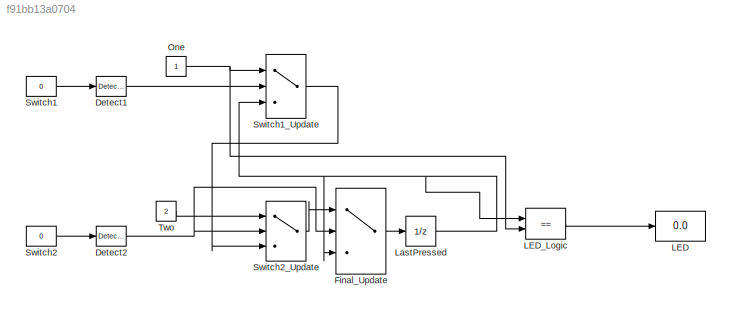
MODEL slx_f91bb13a0704
KIND model
CONFIG AbsTol = auto
CONFIG EnableMultiTasking = off
CONFIG FixedStep = 1
CONFIG MaxStep = auto
CONFIG MinStep = auto
CONFIG RelTol = 1e-3
CONFIG SampleTimeConstraint = Unconstrained
CONFIG SolverName = FixedStepDiscrete
CONFIG StartTime = 0.0
CONFIG StopTime = 20
BLOCK [Reference] Detect1  REF=simulink/Logic and Bit
Operations/Detect
Change
  SourceBlock = simulink/Logic and Bit\nOperations/Detect\nChange
  SourceType = Detect Change
BLOCK [Reference] Detect2  REF=simulink/Logic and Bit
Operations/Detect
Change
  SourceBlock = simulink/Logic and Bit\nOperations/Detect\nChange
  SourceType = Detect Change
BLOCK [Switch] Final_Update
  Criteria = u2 ~= 0
  InputSameDT = off
  SaturateOnIntegerOverflow = off
  Threshold = 0.5
BLOCK [Display] LED
  Decimation = 1
BLOCK [RelationalOperator] LED_Logic
  InputSameDT = off
  Operator = ==
  OutDataTypeStr = boolean
  RndMeth = Simplest
BLOCK [UnitDelay] LastPressed
  HasFrameUpgradeWarning = on
BLOCK [Constant] One
BLOCK [Constant] Switch1
  Value = 0
BLOCK [Switch] Switch1_Update
  Criteria = u2 ~= 0
  InputSameDT = off
  SaturateOnIntegerOverflow = off
  Threshold = 0.5
BLOCK [Constant] Switch2
  Value = 0
BLOCK [Switch] Switch2_Update
  Criteria = u2 ~= 0
  InputSameDT = off
  SaturateOnIntegerOverflow = off
  Threshold = 0.5
BLOCK [Constant] Two
  Value = 2
LINE Detect1:1 -> Switch1_Update:2
NET Detect2:1 -> Final_Update:2, Switch2_Update:2
LINE Final_Update:1 -> LastPressed:1
LINE LED_Logic:1 -> LED:1
NET LastPressed:1 -> Final_Update:3, LED_Logic:1, Switch1_Update:3
NET One:1 -> LED_Logic:2, Switch1_Update:1
LINE Switch1:1 -> Detect1:1
LINE Switch1_Update:1 -> Switch2_Update:3
LINE Switch2:1 -> Detect2:1
LINE Switch2_Update:1 -> Final_Update:1
LINE Two:1 -> Switch2_Update:1
note: NET lines group one-source signal fan-out (src -> all destinations, sorted); 1:1 wires keep LINE
